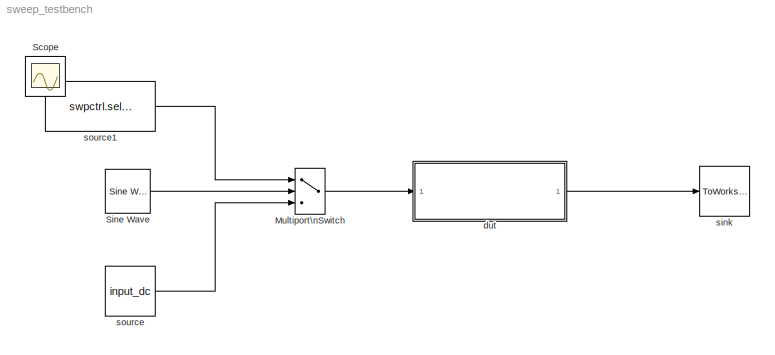
MODEL sweep_testbench
KIND model
BLOCK [MultiPortSwitch] Multiport\nSwitch
  InputSameDT = off
  Inputs = 2
  Ports = [3, 1]
  SID = 7
  SaturateOnIntegerOverflow = off
BLOCK [Scope] Scope
  Floating = off
  IOType = viewer
  NumInputPorts = 1
  Ports = []
  SID = 15
  ScopeSpecificationString = C++SS(StrPVP('Location','[121, 241, 934, 839]'),StrPVP('Open','off'),StrPVP('ZoomMode','xonly'),MxPVP('AxesTitles',54,'struct(''axes1'',''%<SignalLabel>'')'),StrPVP('ShowDataMarkers','off'),StrPVP('ShowLegends','off'),StrPVP('MaxDataPoints','7500'),StrPVP('LimitDataPoints','on'),StrPVP('DataFormat','Array'),StrPVP('Decimation','1'),StrPVP('BlockParamSampleInput','off'))
BLOCK [Reference] Sine Wave  REF=dspsrcs4/Sine Wave
  Amplitude = sinamp
  CompMethod = Trigonometric fcn
  Frequency = sinfreq
  LastOutDataTypeStr = double
  MultithreadedSim = auto
  OutComplex = Real
  OutDataTypeStr = double
  OutputFrames = on
  Phase = 0
  Ports = [0, 1]
  ResetState = Restart at time zero
  SID = 4
  SampleMode = Discrete
  SampleTime = 1/Fs
  SamplesPerFrame = 1
  SourceBlock = dspsrcs4/Sine Wave
  SourceProductBaseCode = DS
  SourceType = Sine Wave
  TableSize = Speed
  additionalParams = off
  allowOverrides = on
  dataType = double
  fracBitsMode = Best precision
  numFracBits = 15
  udDataType = sfix(16)
  wordLen = 16
BLOCK [ModelReference] dut
  ModelNameDialog = mod3_2plus1MASH.mdl
  ModelReferenceVersion = 17.4
  Ports = [1, 1]
  SID = 2
BLOCK [ToWorkspace] sink
  MaxDataPoints = 50000000
  Ports = [1]
  SID = 1
  SampleTime = -1
  VariableName = Qout
BLOCK [Constant] source
  SID = 5
  SampleTime = 1/Fs
  Value = input_dc
BLOCK [Constant] source1
  SID = 9
  SampleTime = 1/Fs
  Value = swpctrl.select
LINE Multiport\nSwitch:1 -> dut:1
LINE Sine Wave:1 -> Multiport\nSwitch:2
LINE dut:1 -> sink:1
LINE source1:1 -> Multiport\nSwitch:1
LINE source:1 -> Multiport\nSwitch:3
